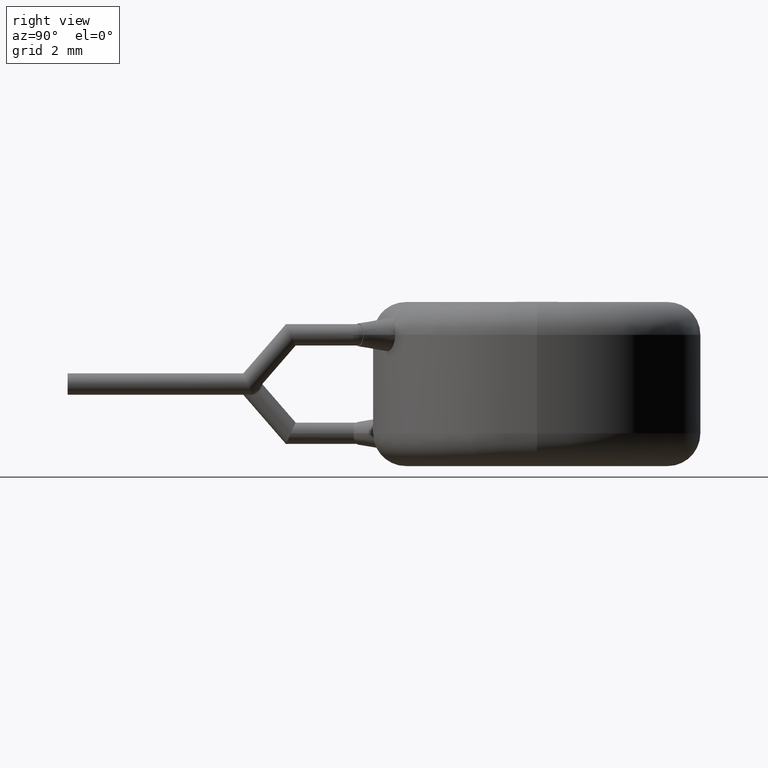
[diagram: clean part render]
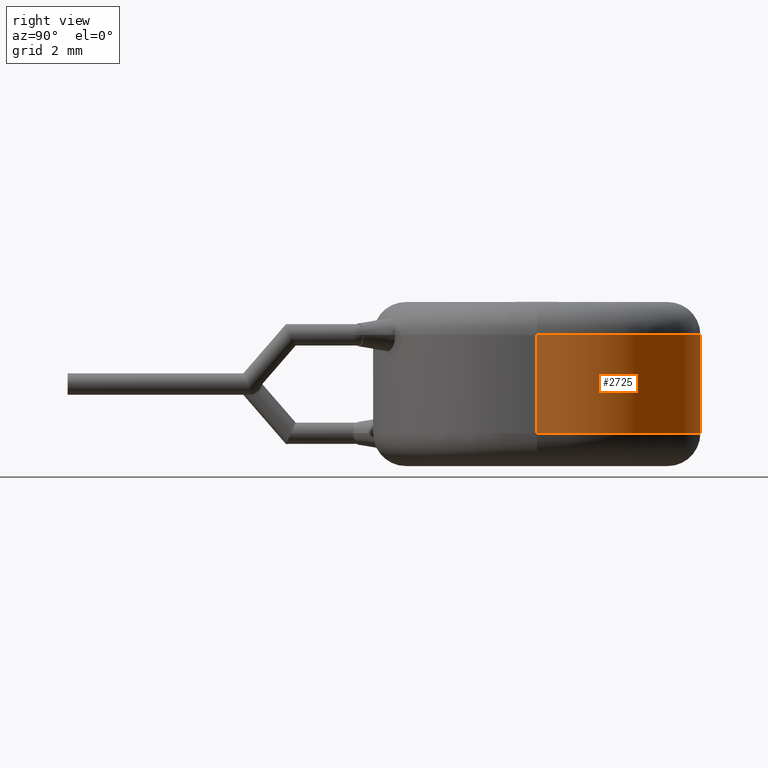
[diagram: same view with one face highlighted and labeled with its STEP entity id]
A machine part, right view. The second image highlights one B-rep face of the part: STEP entity #2725.
In plain terms, the highlighted cylindrical surface (partial cylindrical patch) has radius 5 mm, axis along (-0, -0, -1).
Its self-contained STEP definition (entity closure, byte-faithful):
#117 = DIRECTION ( 'NONE',  ( -0.0000000000000000000, -0.0000000000000000000, -1.000000000000000000 ) ) ;
#145 = AXIS2_PLACEMENT_3D ( 'NONE', #2745, #4093, #2429 ) ;
#232 = DIRECTION ( 'NONE',  ( -0.0000000000000000000, -0.0000000000000000000, -1.000000000000000000 ) ) ;
#272 = VERTEX_POINT ( 'NONE', #4229 ) ;
#439 = CARTESIAN_POINT ( 'NONE',  ( 0.0000000000000000000, 0.0000000000000000000, 4.000000000000000000 ) ) ;
#440 = EDGE_LOOP ( 'NONE', ( #2081, #2344, #3689, #1654 ) ) ;
#1120 = CYLINDRICAL_SURFACE ( 'NONE', #2713, 5.000000000000000000 ) ;
#1259 = CARTESIAN_POINT ( 'NONE',  ( 0.0000000000000000000, 0.0000000000000000000, 5.000000000000000000 ) ) ;
#1285 = LINE ( 'NONE', #1592, #3672 ) ;
#1427 = EDGE_CURVE ( 'NONE', #2569, #1684, #1285, .T. ) ;
#1592 = CARTESIAN_POINT ( 'NONE',  ( 5.000000000000000000, 6.123233995736766300E-016, 5.000000000000000000 ) ) ;
#1622 = LINE ( 'NONE', #1720, #2590 ) ;
#1628 = AXIS2_PLACEMENT_3D ( 'NONE', #439, #2337, #3008 ) ;
#1654 = ORIENTED_EDGE ( 'NONE', *, *, #2069, .F. ) ;
#1684 = VERTEX_POINT ( 'NONE', #3671 ) ;
#1720 = CARTESIAN_POINT ( 'NONE',  ( -5.000000000000000000, 0.0000000000000000000, 5.000000000000000000 ) ) ;
#2069 = EDGE_CURVE ( 'NONE', #272, #3757, #1622, .T. ) ;
#2081 = ORIENTED_EDGE ( 'NONE', *, *, #3890, .T. ) ;
#2249 = EDGE_CURVE ( 'NONE', #1684, #3757, #3987, .T. ) ;
#2337 = DIRECTION ( 'NONE',  ( -0.0000000000000000000, -0.0000000000000000000, -1.000000000000000000 ) ) ;
#2344 = ORIENTED_EDGE ( 'NONE', *, *, #1427, .T. ) ;
#2429 = DIRECTION ( 'NONE',  ( 1.000000000000000000, 0.0000000000000000000, 0.0000000000000000000 ) ) ;
#2453 = CIRCLE ( 'NONE', #1628, 5.000000000000000000 ) ;
#2480 = DIRECTION ( 'NONE',  ( -0.0000000000000000000, -0.0000000000000000000, -1.000000000000000000 ) ) ;
#2569 = VERTEX_POINT ( 'NONE', #3068 ) ;
#2590 = VECTOR ( 'NONE', #117, 1000.000000000000000 ) ;
#2713 = AXIS2_PLACEMENT_3D ( 'NONE', #1259, #232, #4110 ) ;
#2725 = ADVANCED_FACE ( 'NONE', ( #3927 ), #1120, .T. ) ;
#2745 = CARTESIAN_POINT ( 'NONE',  ( 0.0000000000000000000, 0.0000000000000000000, 1.000000000000000000 ) ) ;
#3008 = DIRECTION ( 'NONE',  ( 1.000000000000000000, 0.0000000000000000000, 0.0000000000000000000 ) ) ;
#3068 = CARTESIAN_POINT ( 'NONE',  ( 5.000000000000000000, 6.123233995736766300E-016, 4.000000000000000000 ) ) ;
#3671 = CARTESIAN_POINT ( 'NONE',  ( 5.000000000000000000, 6.123233995736766300E-016, 1.000000000000000000 ) ) ;
#3672 = VECTOR ( 'NONE', #2480, 1000.000000000000000 ) ;
#3689 = ORIENTED_EDGE ( 'NONE', *, *, #2249, .T. ) ;
#3749 = CARTESIAN_POINT ( 'NONE',  ( -5.000000000000000000, 0.0000000000000000000, 1.000000000000000000 ) ) ;
#3757 = VERTEX_POINT ( 'NONE', #3749 ) ;
#3890 = EDGE_CURVE ( 'NONE', #272, #2569, #2453, .T. ) ;
#3927 = FACE_OUTER_BOUND ( 'NONE', #440, .T. ) ;
#3987 = CIRCLE ( 'NONE', #145, 5.000000000000000000 ) ;
#4093 = DIRECTION ( 'NONE',  ( 0.0000000000000000000, 0.0000000000000000000, 1.000000000000000000 ) ) ;
#4110 = DIRECTION ( 'NONE',  ( -1.000000000000000000, 0.0000000000000000000, 0.0000000000000000000 ) ) ;
#4229 = CARTESIAN_POINT ( 'NONE',  ( -5.000000000000000000, 0.0000000000000000000, 4.000000000000000000 ) ) ;